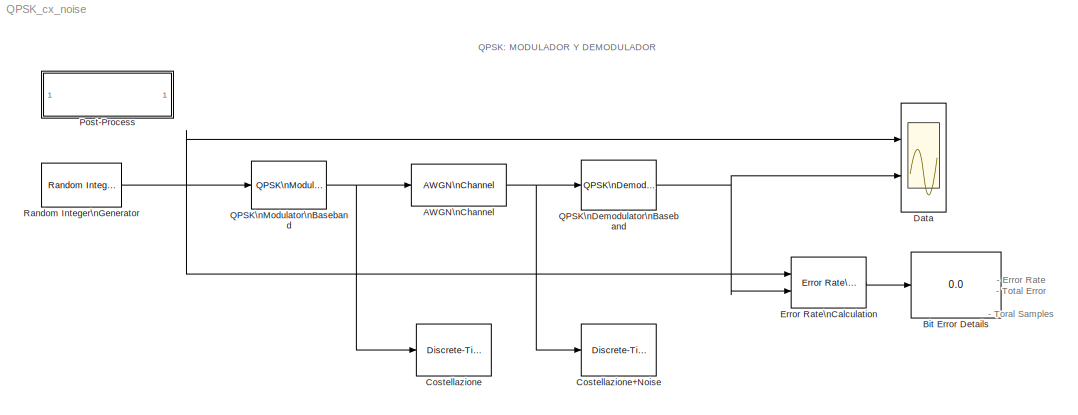
MODEL QPSK_cx_noise
KIND model
BLOCK [Reference] AWGN\nChannel  REF=commchan3/AWGN\nChannel
  EbNodB = 20
  EsNodB = 10
  FunctionWithSeparateData = off
  GeneratePreprocessorConditionals = off
  InputProcessing = Columns as channels (frame based)
  Ports = [1, 1]
  Ps = 1
  RTWMemSecDataConstants = Inherit from model
  RTWMemSecDataInternal = Inherit from model
  RTWMemSecDataParameters = Inherit from model
  RTWMemSecFuncExecute = Inherit from model
  RTWMemSecFuncInitTerm = Inherit from model
  SID = 29
  SNRdB = SNRqn
  ShowPortLabels = FromPortIcon
  SourceBlock = commchan3/AWGN\nChannel
  SourceType = AWGN Channel
  SystemSampleTime = -1
  Tsym = 1
  UserData = DataTag0
  UserDataPersistent = on
  bitsPerSym = 1
  noiseMode = Signal to noise ratio  (SNR)
  seed = 67
  variance = 1
BLOCK [Display] Bit Error Details
  Decimation = 1
  Lockdown = off
  Ports = [1]
  SID = 30
BLOCK [Reference] Costellazione  REF=commsink2/Discrete-Time\nScatter Plot\nScope
  AxisGrid = on
  FigPos = get(0,'defaultfigureposition');
  FrameNumber = off
  FunctionWithSeparateData = off
  GeneratePreprocessorConditionals = off
  LineColors = k
  LineMarkers = x
  Ports = [1]
  RTWMemSecDataConstants = Inherit from model
  RTWMemSecDataInternal = Inherit from model
  RTWMemSecDataParameters = Inherit from model
  RTWMemSecFuncExecute = Inherit from model
  RTWMemSecFuncInitTerm = Inherit from model
  SID = 42
  ShowPortLabels = FromPortIcon
  SourceBlock = commsink2/Discrete-Time\nScatter Plot\nScope
  SourceType = Discrete-Time Scatter Plot Scope
  SystemSampleTime = -1
  Tag = ScatterPlot
  block_type_ = scatter
  fading = on
  figTitle = Scatter Plot
  inphaseLabel = In-phase Amplitude
  numLinesMax = 8
  numNewFrames = 10
  numTraces = 40
  offsetEye = 0
  openScopeAtSimStart = on
  quadratureLabel = Quadrature Amplitude
  render = on
  sampPerSymb = 1
  xMax = 3.315
  xMin = -3.3
  yMax = 3.315
  yMin = -3.3
BLOCK [Reference] Costellazione+Noise  REF=commsink2/Discrete-Time\nScatter Plot\nScope
  AxisGrid = on
  FigPos = get(0,'defaultfigureposition');
  FrameNumber = off
  FunctionWithSeparateData = off
  GeneratePreprocessorConditionals = off
  LineColors = k
  LineMarkers = x
  Ports = [1]
  RTWMemSecDataConstants = Inherit from model
  RTWMemSecDataInternal = Inherit from model
  RTWMemSecDataParameters = Inherit from model
  RTWMemSecFuncExecute = Inherit from model
  RTWMemSecFuncInitTerm = Inherit from model
  SID = 43
  ShowPortLabels = FromPortIcon
  SourceBlock = commsink2/Discrete-Time\nScatter Plot\nScope
  SourceType = Discrete-Time Scatter Plot Scope
  SystemSampleTime = -1
  Tag = ScatterPlot
  block_type_ = scatter
  fading = on
  figTitle = Scatter Plot
  inphaseLabel = In-phase Amplitude
  numLinesMax = 8
  numNewFrames = 10
  numTraces = 40
  offsetEye = 0
  openScopeAtSimStart = on
  quadratureLabel = Quadrature Amplitude
  render = on
  sampPerSymb = 1
  xMax = 3.315
  xMin = -3.3
  yMax = 3.315
  yMin = -3.3
BLOCK [Scope] Data
  DataFormat = StructureWithTime
  Floating = off
  LimitDataPoints = off
  NumInputPorts = 2
  Ports = [2]
  SID = 41
  SampleTime = 0
  YMax = 3.5~3.5
  YMin = -0.5~-0.5
  ZoomMode = xonly
BLOCK [Reference] Error Rate\nCalculation  REF=commsink2/Error Rate\nCalculation
  N = 0
  PMode = Port
  Ports = [2, 1]
  RsMode2 = off
  SID = 32
  SourceBlock = commsink2/Error Rate\nCalculation
  SourceType = Error Rate Calculation
  WsName = ErrorVec
  cp_mode = Entire frame
  maxBits = 1e6
  numErr = 100
  st_delay = 0
  stop = off
  subframe = []
BLOCK [SubSystem] Post-Process
  FunctionWithSeparateData = off
  MaskCallbackString = ||
  MaskDisplay = disp('Sim Parameters')
  MaskEnableString = on,on,on
  MaskHideContents = off
  MaskIconFrame = on
  MaskIconOpaque = on
  MaskIconRotate = none
  MaskIconUnits = autoscale
  MaskInitialization = %sim_t = 100; %simulation time\n%BSTf = 5; % source sample time\nPZfn = .4; % probability of zero\n\n%STf = 1/100; % sample time\n%A1f = 1; % amplitude sine 1 - mod.\n%A2f = 1; % amplitude sine 2 - mod.\n%F1f = 2*pi*8; % Freg Sine 1\n%F2f = 2*pi*12; % Freg Sine 2\n\n\n% Sample Time Source Configure\nswitch STqn\n    case 1\n        STqn = 1;\n    case 2\n        STqn = 5;\n    case 3\n        STqn...<+585ch>
  MaskPortRotate = default
  MaskPromptString = Sim Time [100]|Source Sample Time|SNR
  MaskStyleString = popup(50|100|250|500|1000),popup(1|5|10),edit
  MaskToolTipString = on,on,on
  MaskTunableValueString = on,on,on
  MaskValueString = 1000|5|0
  MaskVariables = sim_t=@1;STqn=@2;SNRqn=@3;
  MaskVisibilityString = on,on,on
  MinAlgLoopOccurrences = off
  Opaque = off
  Ports = []
  PropExecContextOutsideSubsystem = off
  RTWSystemCode = Auto
  RequestExecContextInheritance = off
  SID = 47
BLOCK [Reference] QPSK\nDemodulator\nBaseband  REF=commdigbbndpm3/QPSK\nDemodulator\nBaseband
  Dec = Gray
  DecType = Hard decision
  DialogController = commDDGCreate
  DialogControllerArgs = DataTag1
  OutType = Integer
  Ph = pi/4
  Ports = [1, 1]
  SID = 39
  SourceBlock = commdigbbndpm3/QPSK\nDemodulator\nBaseband
  SourceType = QPSK Demodulator Baseband
  VarSource = Dialog
  Variance = 1
  derotateFactorDTMode = Same word length as input
  derotateFactorWordLen = 16
  outDtype1 = Inherit via internal rule
  outDtype2 = Inherit via internal rule
BLOCK [Reference] QPSK\nModulator\nBaseband  REF=commdigbbndpm3/QPSK\nModulator\nBaseband
  DialogController = commDDGCreate
  DialogControllerArgs = DataTag2
  Enc = Gray
  FunctionWithSeparateData = off
  GeneratePreprocessorConditionals = off
  InType = Integer
  Ph = pi/4
  Ports = [1, 1]
  RTWMemSecDataConstants = Inherit from model
  RTWMemSecDataInternal = Inherit from model
  RTWMemSecDataParameters = Inherit from model
  RTWMemSecFuncExecute = Inherit from model
  RTWMemSecFuncInitTerm = Inherit from model
  SID = 38
  ShowPortLabels = FromPortIcon
  SourceBlock = commdigbbndpm3/QPSK\nModulator\nBaseband
  SourceType = QPSK Modulator Baseband
  SystemSampleTime = -1
  outDtype = double
  outFracLen = 15
  outFracLenMode = Best precision
  outUDDataType = sfix(16)
  outWordLen = 16
BLOCK [Reference] Random Integer\nGenerator  REF=commrandsrc2/Random Integer\nGenerator
  FunctionWithSeparateData = off
  GeneratePreprocessorConditionals = off
  Ports = [0, 1]
  RTWMemSecDataConstants = Inherit from model
  RTWMemSecDataInternal = Inherit from model
  RTWMemSecDataParameters = Inherit from model
  RTWMemSecFuncExecute = Inherit from model
  RTWMemSecFuncInitTerm = Inherit from model
  SID = 45
  ShowPortLabels = FromPortIcon
  SourceBlock = commrandsrc2/Random Integer\nGenerator
  SourceType = Random Integer Generator
  SystemSampleTime = -1
  Ts = STqn
  frameBased = off
  mul = 4
  orient = off
  outDataType = double
  sampPerFrame = 1
  seed = 37
ANNOTATION (root): - Error Rate\n- Total Error\n- Toral Samples
ANNOTATION (root): QPSK: MODULADOR Y DEMODULADOR
NET AWGN\nChannel:1 -> Costellazione+Noise:1, QPSK\nDemodulator\nBaseband:1
LINE Error Rate\nCalculation:1 -> Bit Error Details:1
NET QPSK\nDemodulator\nBaseband:1 -> Data:2, Error Rate\nCalculation:2
NET QPSK\nModulator\nBaseband:1 -> AWGN\nChannel:1, Costellazione:1
NET Random Integer\nGenerator:1 -> Data:1, Error Rate\nCalculation:1, QPSK\nModulator\nBaseband:1
note: NET lines group one-source signal fan-out (src -> all destinations, sorted); 1:1 wires keep LINE
